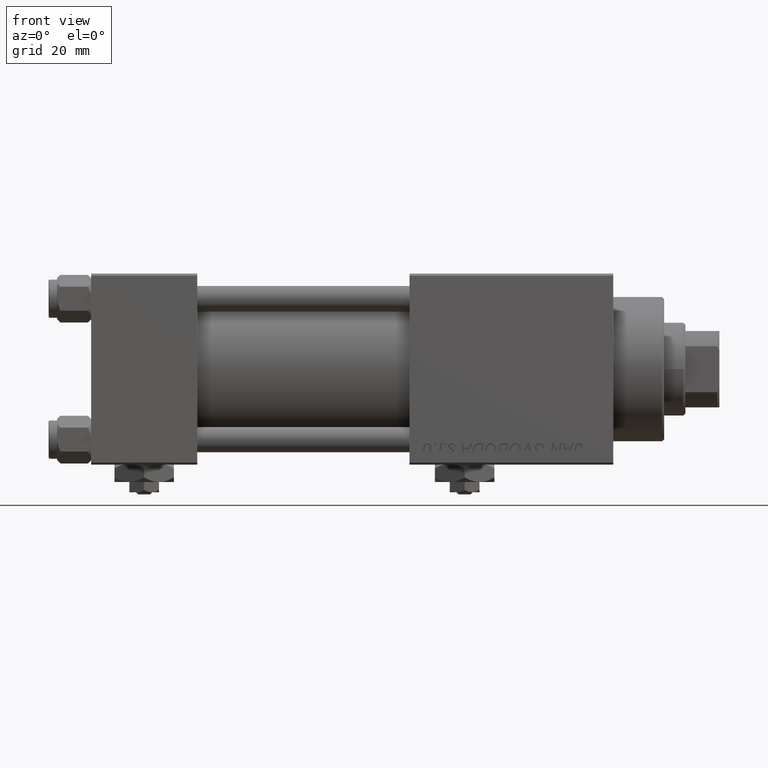
[diagram: clean part render]
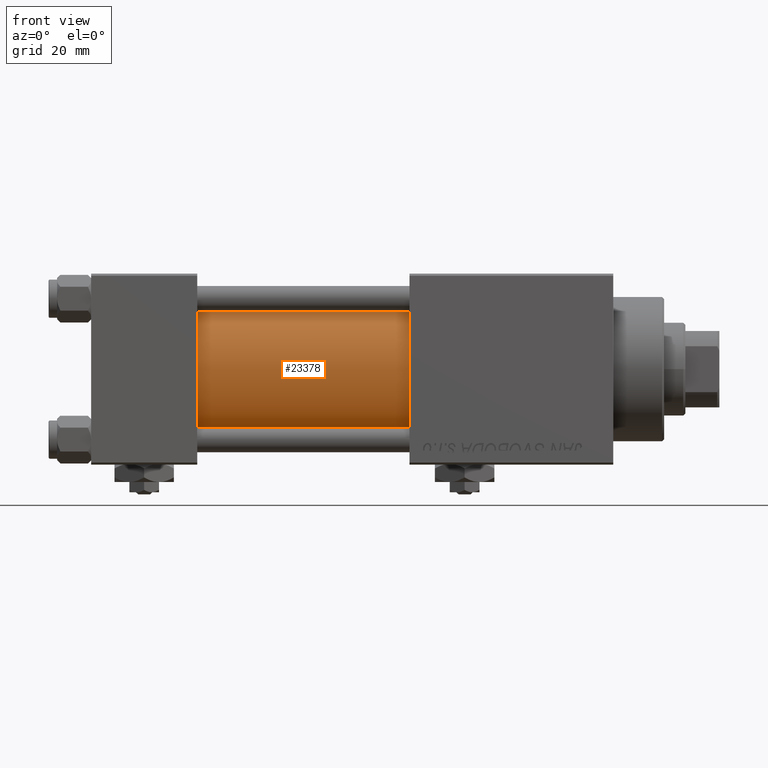
[diagram: same view with one face highlighted and labeled with its STEP entity id]
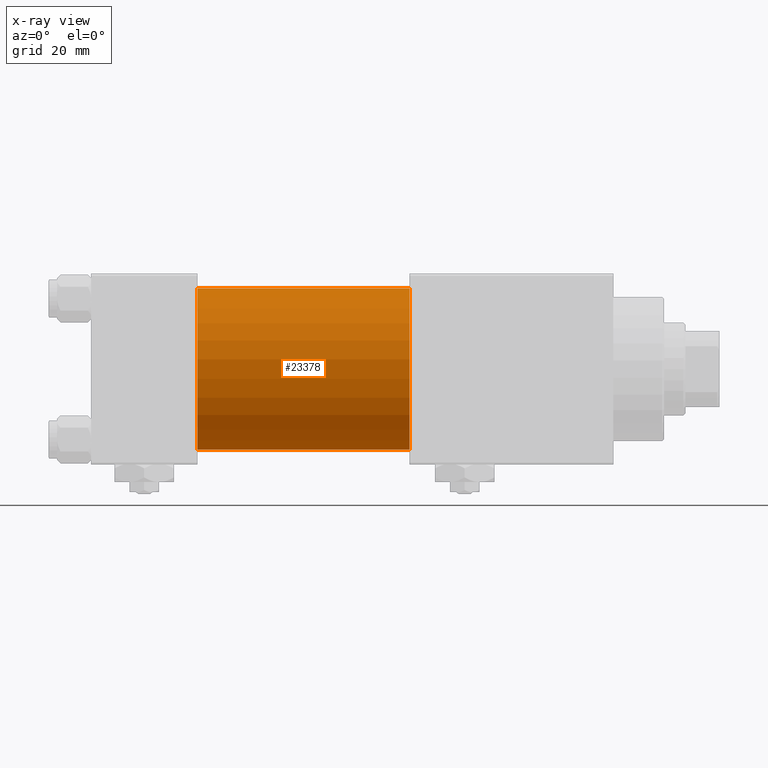
[diagram: x-ray of the same camera — body ghosted, the highlighted face saturated]
A machine part, front view. The second image highlights one B-rep face of the part: STEP entity #23378.
The next image is the same camera in x-ray: the body ghosted, the highlighted face saturated — about 0% of this face is hidden behind the body in this view.
In plain terms, the highlighted cylindrical surface (partial cylindrical patch) has radius 19 mm, axis along (-1, -0, -0).
Its self-contained STEP definition (entity closure, byte-faithful):
#323 = AXIS2_PLACEMENT_3D ( 'NONE', #18104, #23064, #27036 ) ;
#2092 = DIRECTION ( 'NONE',  ( 1.000000000000000000, 0.000000000000000000, 0.000000000000000000 ) ) ;
#2754 = EDGE_CURVE ( 'NONE', #10971, #45425, #7077, .T. ) ;
#2784 = ORIENTED_EDGE ( 'NONE', *, *, #2754, .T. ) ;
#3357 = LINE ( 'NONE', #31540, #43914 ) ;
#5541 = CARTESIAN_POINT ( 'NONE',  ( 75.00000000000001421, -2.602085213965210642E-15, 0.000000000000000000 ) ) ;
#7077 = CIRCLE ( 'NONE', #323, 19.00000000000000000 ) ;
#10464 = CYLINDRICAL_SURFACE ( 'NONE', #48837, 19.00000000000000000 ) ;
#10971 = VERTEX_POINT ( 'NONE', #40047 ) ;
#12167 = EDGE_LOOP ( 'NONE', ( #30391, #26831, #13478, #2784 ) ) ;
#13478 = ORIENTED_EDGE ( 'NONE', *, *, #51771, .T. ) ;
#14504 = VERTEX_POINT ( 'NONE', #39602 ) ;
#16496 = LINE ( 'NONE', #48694, #28592 ) ;
#18104 = CARTESIAN_POINT ( 'NONE',  ( 25.00000000000000000, -2.602085213965210642E-15, 0.000000000000000000 ) ) ;
#21817 = FACE_OUTER_BOUND ( 'NONE', #12167, .T. ) ;
#22373 = DIRECTION ( 'NONE',  ( 0.000000000000000000, 0.000000000000000000, -1.000000000000000000 ) ) ;
#22648 = CARTESIAN_POINT ( 'NONE',  ( 25.00000000000000000, -2.752562955852396712E-16, -19.00000000000000000 ) ) ;
#23064 = DIRECTION ( 'NONE',  ( 1.000000000000000000, -0.000000000000000000, 0.000000000000000000 ) ) ;
#23378 = ADVANCED_FACE ( 'NONE', ( #21817 ), #10464, .T. ) ;
#23679 = EDGE_CURVE ( 'NONE', #14504, #45425, #16496, .T. ) ;
#25089 = EDGE_CURVE ( 'NONE', #37541, #14504, #37942, .T. ) ;
#26831 = ORIENTED_EDGE ( 'NONE', *, *, #25089, .F. ) ;
#27036 = DIRECTION ( 'NONE',  ( 0.000000000000000000, 0.000000000000000000, 1.000000000000000000 ) ) ;
#28592 = VECTOR ( 'NONE', #29665, 1000.000000000000000 ) ;
#28671 = AXIS2_PLACEMENT_3D ( 'NONE', #5541, #2092, #22373 ) ;
#29665 = DIRECTION ( 'NONE',  ( -1.000000000000000000, -0.000000000000000000, -0.000000000000000000 ) ) ;
#29979 = CARTESIAN_POINT ( 'NONE',  ( 75.00000000000001421, -2.602085213965210642E-15, 0.000000000000000000 ) ) ;
#30391 = ORIENTED_EDGE ( 'NONE', *, *, #23679, .F. ) ;
#31540 = CARTESIAN_POINT ( 'NONE',  ( 75.00000000000001421, -2.602085213965210642E-15, 19.00000000000000000 ) ) ;
#37541 = VERTEX_POINT ( 'NONE', #49404 ) ;
#37914 = DIRECTION ( 'NONE',  ( -1.000000000000000000, -0.000000000000000000, -0.000000000000000000 ) ) ;
#37942 = CIRCLE ( 'NONE', #28671, 19.00000000000000000 ) ;
#38939 = DIRECTION ( 'NONE',  ( 0.000000000000000000, 0.000000000000000000, 1.000000000000000000 ) ) ;
#39602 = CARTESIAN_POINT ( 'NONE',  ( 75.00000000000001421, -2.752562955852396712E-16, -19.00000000000000000 ) ) ;
#40047 = CARTESIAN_POINT ( 'NONE',  ( 25.00000000000000000, -2.602085213965210642E-15, 19.00000000000000000 ) ) ;
#43914 = VECTOR ( 'NONE', #47923, 1000.000000000000000 ) ;
#45425 = VERTEX_POINT ( 'NONE', #22648 ) ;
#47923 = DIRECTION ( 'NONE',  ( -1.000000000000000000, -0.000000000000000000, -0.000000000000000000 ) ) ;
#48694 = CARTESIAN_POINT ( 'NONE',  ( 75.00000000000001421, -2.752562955852396712E-16, -19.00000000000000000 ) ) ;
#48837 = AXIS2_PLACEMENT_3D ( 'NONE', #29979, #37914, #38939 ) ;
#49404 = CARTESIAN_POINT ( 'NONE',  ( 75.00000000000001421, -2.602085213965210642E-15, 19.00000000000000000 ) ) ;
#51771 = EDGE_CURVE ( 'NONE', #37541, #10971, #3357, .T. ) ;